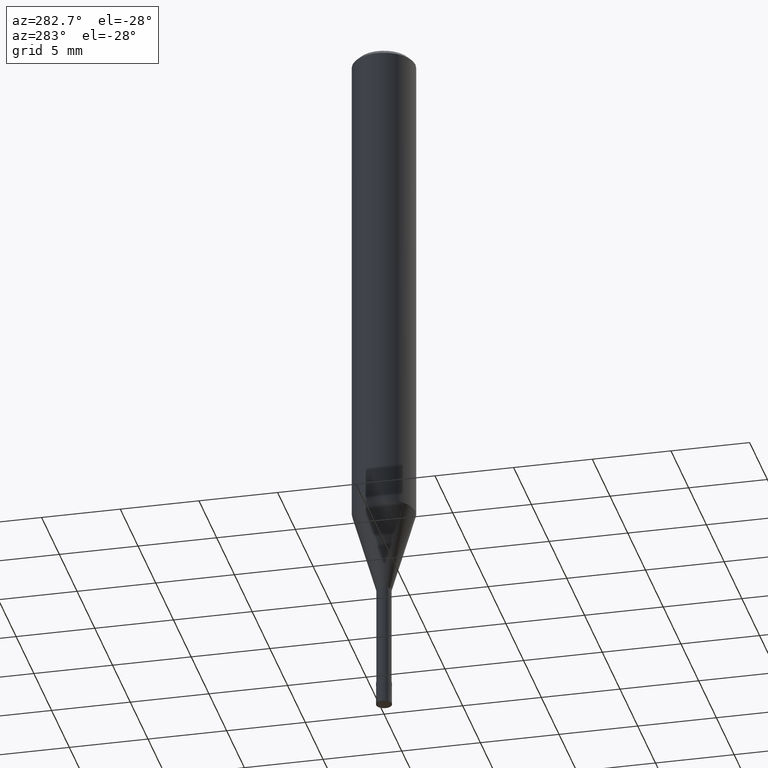
[diagram: clean part render]
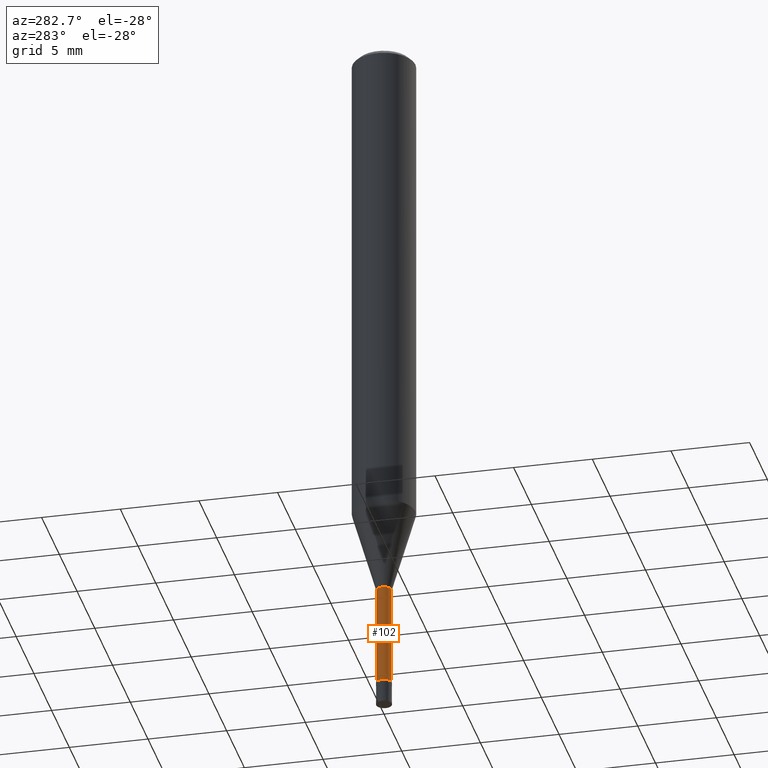
[diagram: same view with one face highlighted and labeled with its STEP entity id]
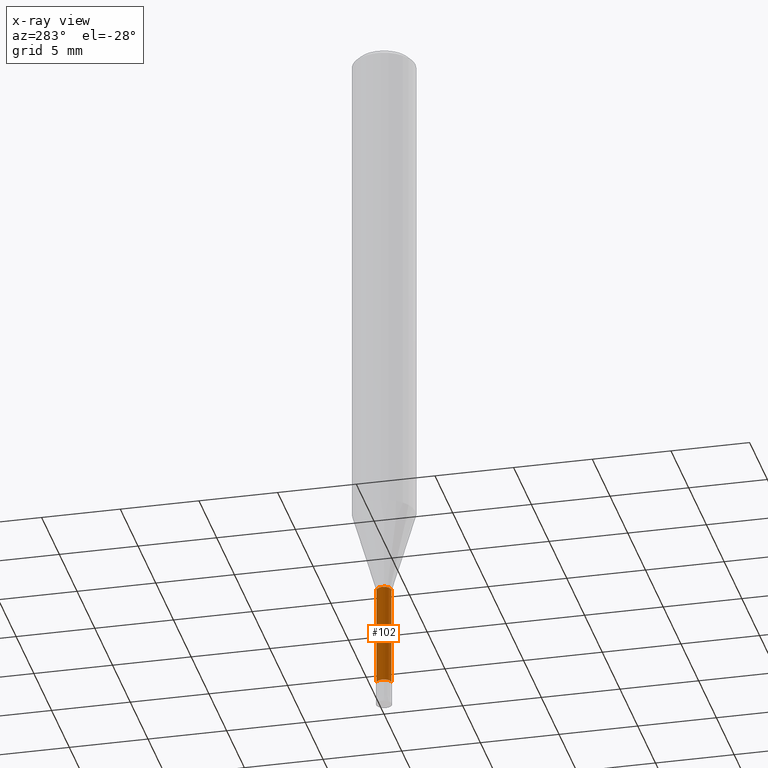
[diagram: x-ray of the same camera — body ghosted, the highlighted face saturated]
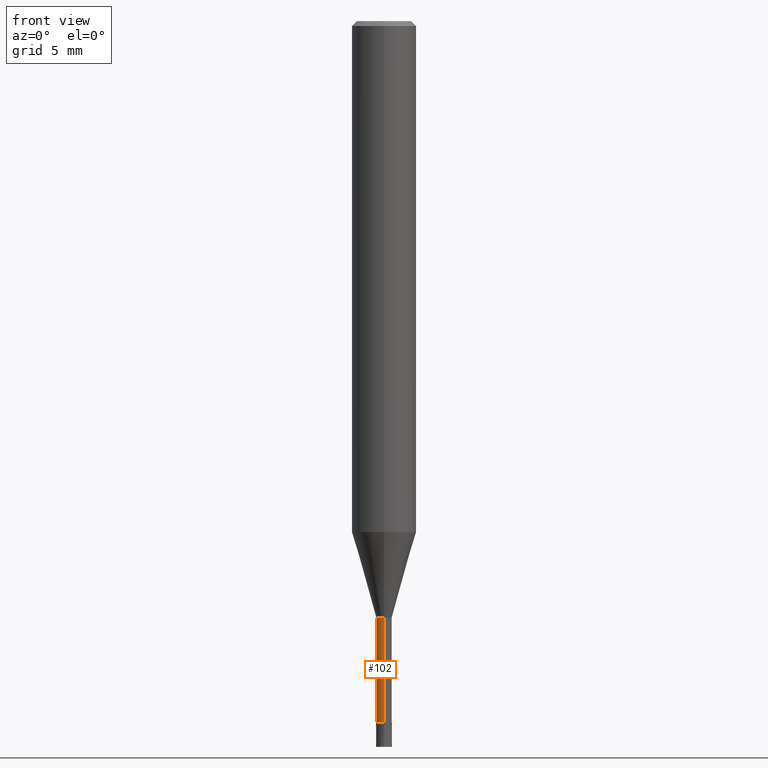
[diagram: same view with one face highlighted and labeled with its STEP entity id]
A machine part, auxiliary view. The second image highlights one B-rep face of the part: STEP entity #102.
The next image is the same camera in x-ray: the body ghosted, the highlighted face saturated — about 0% of this face is hidden behind the body in this view.
A second angle (front view) of the same face is appended — the face is thin or edge-on in the first view.
In plain terms, the highlighted cylindrical surface (edge-blend (fillet) strip) has radius 0.4749 mm, axis along (-0, -0, 1).
Its self-contained STEP definition (entity closure, byte-faithful):
#96=EDGE_CURVE('',#170,#148,#233,.T.);
#102=ADVANCED_FACE('',(#240),#241,.T.);
#104=EDGE_CURVE('',#140,#144,#243,.T.);
#140=VERTEX_POINT('',#283);
#144=VERTEX_POINT('',#287);
#148=VERTEX_POINT('',#291);
#170=VERTEX_POINT('',#315);
#184=EDGE_CURVE('',#144,#148,#331,.T.);
#190=EDGE_CURVE('',#170,#140,#338,.T.);
#233=CIRCLE('',#383,0.47495);
#240=FACE_OUTER_BOUND('',#390,.T.);
#241=CYLINDRICAL_SURFACE('',#391,0.47495);
#243=CIRCLE('',#394,0.47495);
#283=CARTESIAN_POINT('',(5.81626787747938E-017,-0.47495,-37.0));
#287=CARTESIAN_POINT('',(0.0,0.47495,-37.0));
#291=CARTESIAN_POINT('',(0.0,0.47495,-43.5));
#315=CARTESIAN_POINT('',(5.81626787747938E-017,-0.47495,-43.5));
#331=LINE('',#505,#506);
#338=LINE('',#514,#515);
#383=AXIS2_PLACEMENT_3D('',#544,#545,#546);
#390=EDGE_LOOP('',(#554,#555,#556,#557));
#391=AXIS2_PLACEMENT_3D('',#558,#559,#560);
#394=AXIS2_PLACEMENT_3D('',#561,#562,#563);
#505=CARTESIAN_POINT('',(-5.81626787747938E-017,0.47495,-40.25));
#506=VECTOR('',#669,1.0);
#514=CARTESIAN_POINT('',(5.81626787747938E-017,-0.47495,-40.25));
#515=VECTOR('',#676,1.0);
#544=CARTESIAN_POINT('',(0.0,0.0,-43.5));
#545=DIRECTION('',(0.0,0.0,-1.0));
#546=DIRECTION('',(0.0,1.0,0.0));
#554=ORIENTED_EDGE('',*,*,#184,.T.);
#555=ORIENTED_EDGE('',*,*,#96,.F.);
#556=ORIENTED_EDGE('',*,*,#190,.T.);
#557=ORIENTED_EDGE('',*,*,#104,.T.);
#558=CARTESIAN_POINT('',(0.0,0.0,-40.25));
#559=DIRECTION('',(-0.0,-0.0,1.0));
#560=DIRECTION('',(0.0,1.0,0.0));
#561=CARTESIAN_POINT('',(0.0,0.0,-37.0));
#562=DIRECTION('',(0.0,0.0,-1.0));
#563=DIRECTION('',(0.0,1.0,0.0));
#669=DIRECTION('',(0.0,0.0,-1.0));
#676=DIRECTION('',(-0.0,-0.0,1.0));